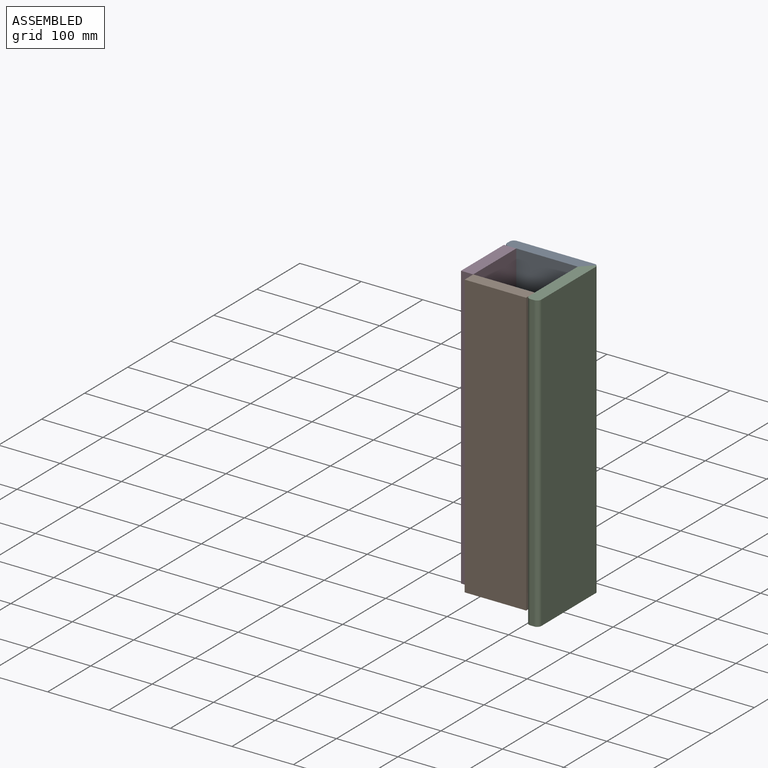
[diagram: assembled view]
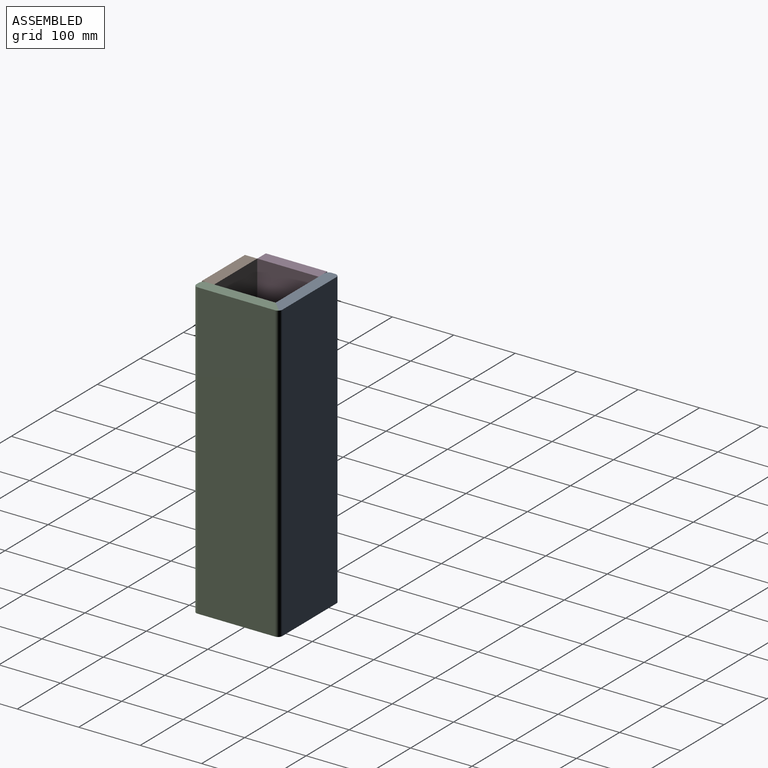
[diagram: assembled view, second angle]
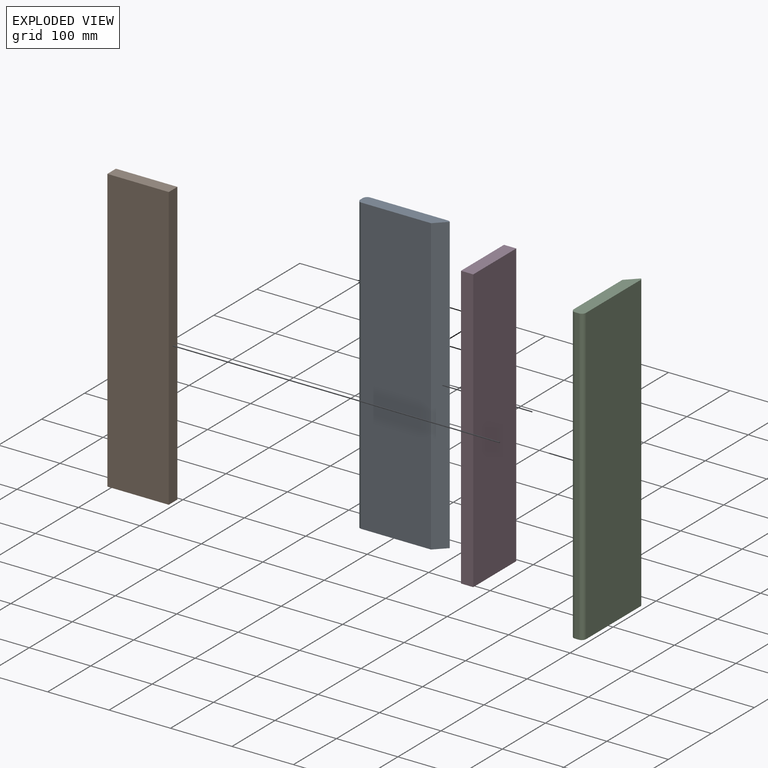
[diagram: exploded view]
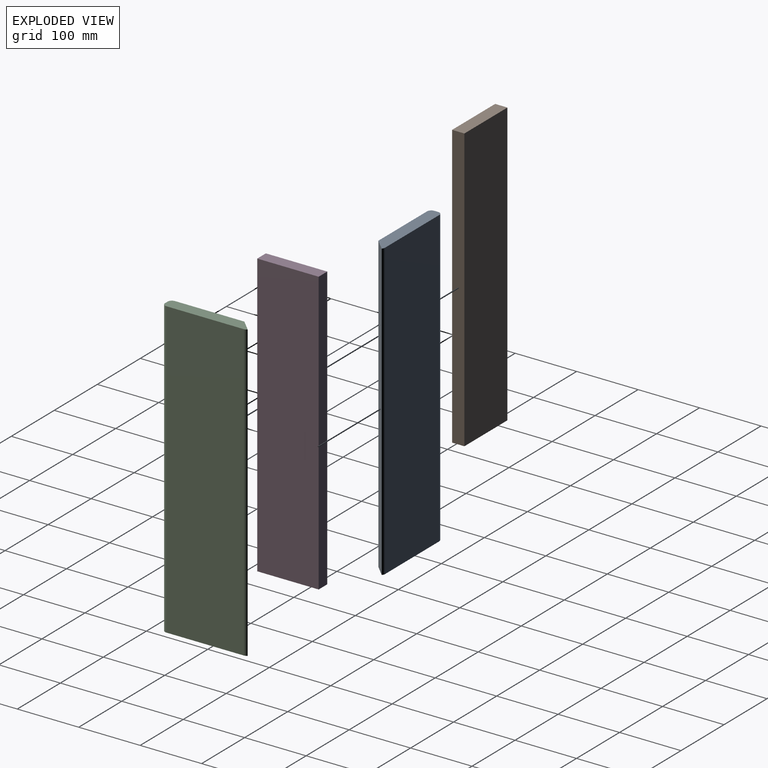
[diagram: exploded view, second angle]
ASSEMBLY  parts=4 mates=8
PART A: 9 faces, bbox 137.9x20x480 mm
  f0: plane 480x6mm, normal (-1,0,0), area 2880mm2, adj f3,f4,f5,f7
  f1: plane 480x113mm, normal (0,-1,0), area 54240mm2, adj f3,f4,f5,f8
  f2: plane 480x126mm, normal (0,1,0), area 60480mm2, adj f3,f4,f6,f7
  f3: plane 137.95x20mm, normal (0,0,1), area 2573.7mm2, adj f0,f1,f2,f5,f6,f7,f8
  f4: plane 137.95x20mm, normal (0,0,-1), area 2573.7mm2, adj f0,f1,f2,f5,f6,f7,f8
  f5: cylinder r=7mm len=480mm, axis (0,0,1), area 5277.9mm2, adj f0,f1,f3,f4
  f6: cylinder r=7mm len=480mm, axis (0,0,1), area 2638.9mm2, adj f2,f3,f4,f8
  f7: cylinder r=7mm len=480mm, axis (0,0,-1), area 5277.9mm2, adj f0,f2,f3,f4
  f8: plane 480x17.95mm, normal (0.71,-0.71,0), area 12184.7mm2, adj f1,f3,f4,f6
PART B: 6 faces, bbox 100x20x460 mm
  f0: plane 460x20mm, normal (-1,0,0), area 9200mm2, adj f1,f3,f4,f5
  f1: plane 460x100mm, normal (0,-1,0), area 46000mm2, adj f0,f2,f4,f5
  f2: plane 460x20mm, normal (1,0,0), area 9200mm2, adj f1,f3,f4,f5
  f3: plane 460x100mm, normal (0,1,0), area 46000mm2, adj f0,f2,f4,f5
  f4: plane 100x20mm, normal (0,0,1), area 2000mm2, adj f0,f1,f2,f3
  f5: plane 100x20mm, normal (0,0,-1), area 2000mm2, adj f0,f1,f2,f3
PART C: same geometry as A
PART D: same geometry as B
PLACE A t=(189.56,347.12,-84.81)mm
PLACE B t=(209.56,227.12,-64.81)mm
PLACE C rot(axis=(0.71,0.71,0),180deg) t=(309.56,227.12,395.19)mm
PLACE D rot(axis=(0.71,0.71,0),180deg) t=(189.56,247.12,395.19)mm
MATE parallel D.f1 <-> A.f0  axis (-1,0,0) through (189.56,297.12,165.19)mm
MATE planar B.f2 <-> C.f1  axis (1,0,0) through (309.56,237.12,165.19)mm
MATE parallel B.f1 <-> C.f0  axis (0,-1,0) through (259.56,227.12,165.19)mm
MATE parallel B.f1 <-> C.f0  axis (0,-1,0) through (259.56,227.12,165.19)mm
MATE parallel D.f5 <-> A.f3  axis (0,0,1) through (199.56,297.12,395.19)mm
MATE parallel B.f4 <-> C.f4  axis (0,0,1) through (259.56,237.12,395.19)mm
MATE planar C.f8 <-> A.f8  axis (-0.71,0.71,0) through (318.53,356.09,155.19)mm
MATE planar D.f2 <-> A.f1  axis (0,1,0) through (199.56,347.12,165.19)mm
